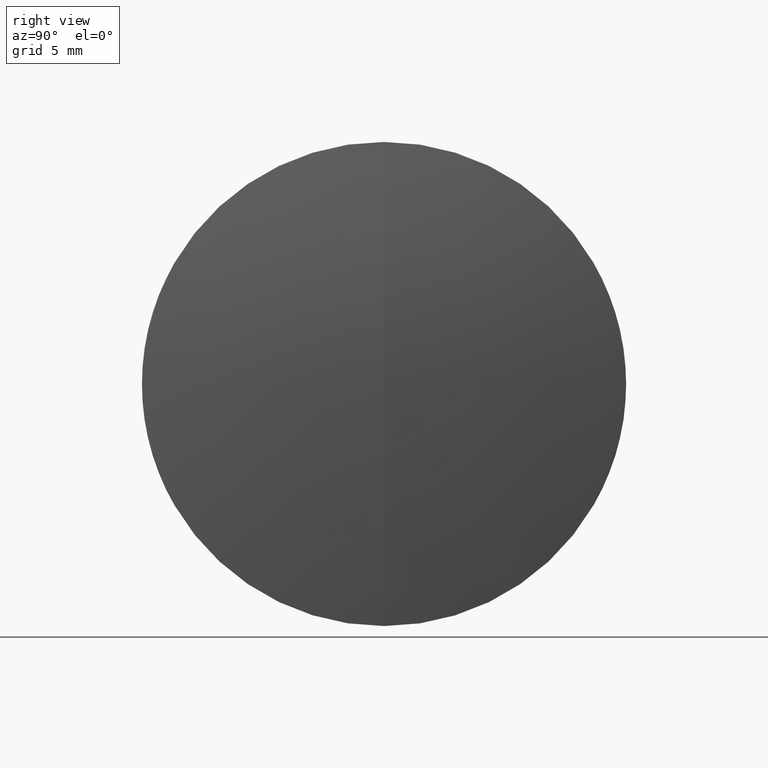
[diagram: clean part render]
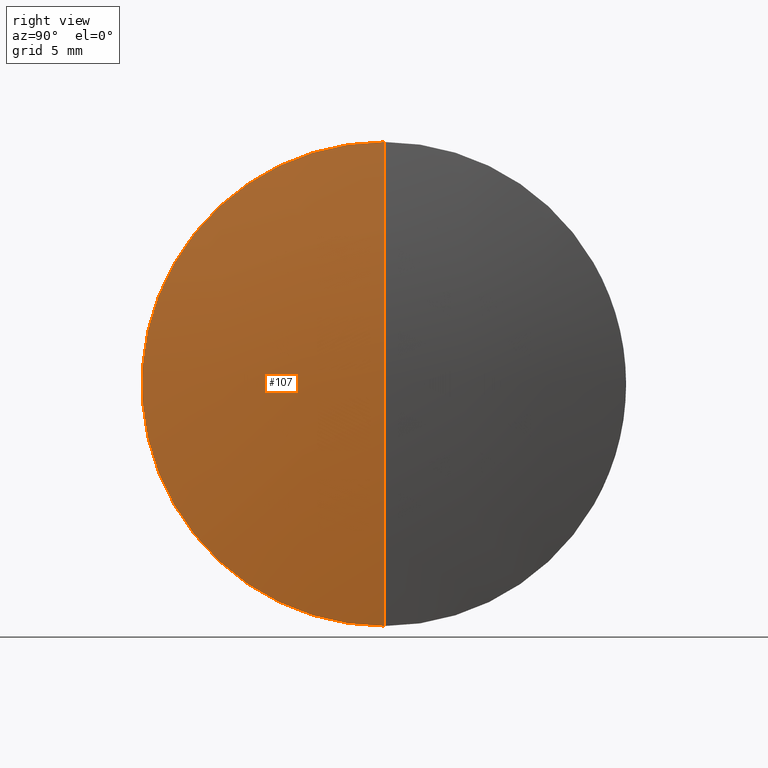
[diagram: same view with one face highlighted and labeled with its STEP entity id]
A machine part, right view. The second image highlights one B-rep face of the part: STEP entity #107.
In plain terms, the highlighted spherical surface has radius 79.08 mm.
Its self-contained STEP definition (entity closure, byte-faithful):
#4 = CIRCLE ( 'NONE', #109, 79.07999999999998400 ) ;
#8 = ORIENTED_EDGE ( 'NONE', *, *, #197, .F. ) ;
#23 = ORIENTED_EDGE ( 'NONE', *, *, #310, .T. ) ;
#27 = VERTEX_POINT ( 'NONE', #171 ) ;
#30 = CARTESIAN_POINT ( 'NONE',  ( 281.1325348403413500, 1.555301434917137400E-015, -12.69999999999998500 ) ) ;
#31 = VERTEX_POINT ( 'NONE', #30 ) ;
#43 = CIRCLE ( 'NONE', #271, 12.69999999999998500 ) ;
#101 = DIRECTION ( 'NONE',  ( 0.0000000000000000000, 0.0000000000000000000, 1.000000000000000000 ) ) ;
#107 = ADVANCED_FACE ( 'NONE', ( #135 ), #131, .T. ) ;
#109 = AXIS2_PLACEMENT_3D ( 'NONE', #164, #219, #323 ) ;
#114 = CARTESIAN_POINT ( 'NONE',  ( 282.1589865545651000, 0.0000000000000000000, 4.842253443828633400E-015 ) ) ;
#128 = DIRECTION ( 'NONE',  ( 0.0000000000000000000, -1.224646799147353200E-016, 1.000000000000000000 ) ) ;
#131 = SPHERICAL_SURFACE ( 'NONE', #150, 79.07999999999998400 ) ;
#135 = FACE_OUTER_BOUND ( 'NONE', #224, .T. ) ;
#150 = AXIS2_PLACEMENT_3D ( 'NONE', #308, #281, #302 ) ;
#164 = CARTESIAN_POINT ( 'NONE',  ( 203.0789865545651200, 0.0000000000000000000, 0.0000000000000000000 ) ) ;
#170 = DIRECTION ( 'NONE',  ( -0.0000000000000000000, 1.000000000000000000, 1.224646799147353200E-016 ) ) ;
#171 = CARTESIAN_POINT ( 'NONE',  ( 281.1325348403413500, 0.0000000000000000000, 12.69999999999998500 ) ) ;
#197 = EDGE_CURVE ( 'NONE', #31, #27, #43, .T. ) ;
#202 = AXIS2_PLACEMENT_3D ( 'NONE', #315, #170, #128 ) ;
#205 = CARTESIAN_POINT ( 'NONE',  ( 281.1325348403413500, 0.0000000000000000000, 0.0000000000000000000 ) ) ;
#217 = ORIENTED_EDGE ( 'NONE', *, *, #265, .F. ) ;
#219 = DIRECTION ( 'NONE',  ( 0.0000000000000000000, -1.000000000000000000, 0.0000000000000000000 ) ) ;
#224 = EDGE_LOOP ( 'NONE', ( #217, #23, #8 ) ) ;
#265 = EDGE_CURVE ( 'NONE', #325, #31, #329, .T. ) ;
#271 = AXIS2_PLACEMENT_3D ( 'NONE', #205, #276, #101 ) ;
#276 = DIRECTION ( 'NONE',  ( -1.000000000000000000, -0.0000000000000000000, -0.0000000000000000000 ) ) ;
#281 = DIRECTION ( 'NONE',  ( 0.0000000000000000000, 1.000000000000000000, 0.0000000000000000000 ) ) ;
#302 = DIRECTION ( 'NONE',  ( 0.0000000000000000000, 0.0000000000000000000, 1.000000000000000000 ) ) ;
#308 = CARTESIAN_POINT ( 'NONE',  ( 203.0789865545651200, 0.0000000000000000000, 0.0000000000000000000 ) ) ;
#310 = EDGE_CURVE ( 'NONE', #325, #27, #4, .T. ) ;
#315 = CARTESIAN_POINT ( 'NONE',  ( 203.0789865545651200, 0.0000000000000000000, 0.0000000000000000000 ) ) ;
#323 = DIRECTION ( 'NONE',  ( 0.0000000000000000000, 0.0000000000000000000, -1.000000000000000000 ) ) ;
#325 = VERTEX_POINT ( 'NONE', #114 ) ;
#329 = CIRCLE ( 'NONE', #202, 79.07999999999998400 ) ;